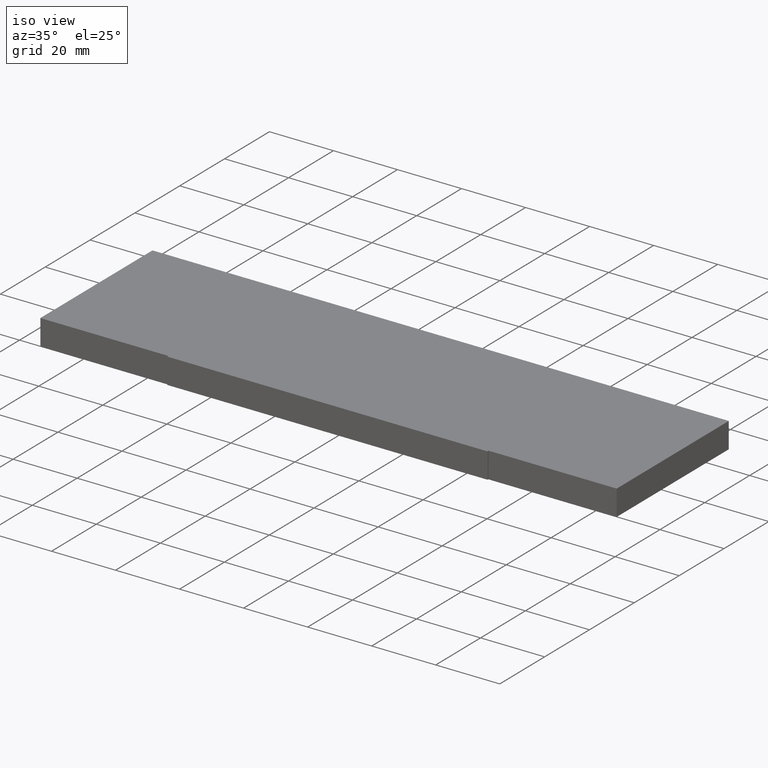
[diagram: clean part render]
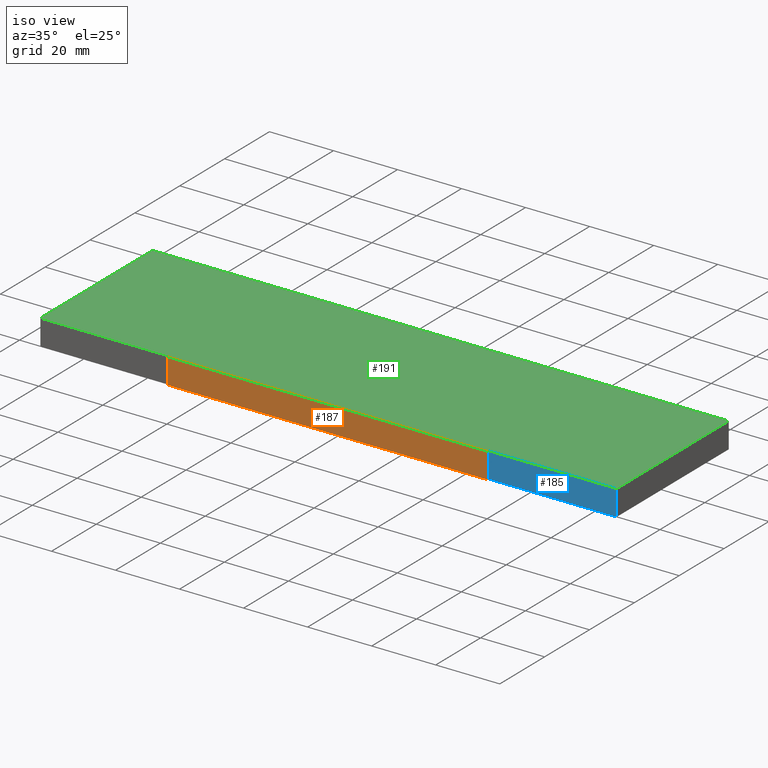
[diagram: same view with three faces highlighted in distinct colors, each labeled with its STEP entity id]
A machine part, iso view with three faces highlighted in distinct colors.
Their STEP definitions:

[orange] entity #187 — the highlighted planar face has unit normal (0, -1, 0).
#21=FACE_OUTER_BOUND('',#31,.T.);
#31=EDGE_LOOP('',(#148,#149,#150,#151));
#42=LINE('',#287,#66);
#52=LINE('',#306,#76);
#53=LINE('',#309,#77);
#54=LINE('',#310,#78);
#66=VECTOR('',#235,10.);
#76=VECTOR('',#253,10.);
#77=VECTOR('',#256,10.);
#78=VECTOR('',#257,10.);
#90=VERTEX_POINT('',#284);
#91=VERTEX_POINT('',#286);
#96=VERTEX_POINT('',#304);
#97=VERTEX_POINT('',#308);
#106=EDGE_CURVE('',#91,#90,#42,.T.);
#116=EDGE_CURVE('',#96,#90,#52,.T.);
#117=EDGE_CURVE('',#96,#97,#53,.T.);
#118=EDGE_CURVE('',#97,#91,#54,.T.);
#148=ORIENTED_EDGE('',*,*,#117,.T.);
#149=ORIENTED_EDGE('',*,*,#118,.T.);
#150=ORIENTED_EDGE('',*,*,#106,.T.);
#151=ORIENTED_EDGE('',*,*,#116,.F.);
#177=PLANE('',#220);
#187=ADVANCED_FACE('',(#21),#177,.T.);
#220=AXIS2_PLACEMENT_3D('',#307,#254,#255);
#235=DIRECTION('',(1.,0.,0.));
#253=DIRECTION('',(0.,0.,-1.));
#254=DIRECTION('center_axis',(0.,-1.,0.));
#255=DIRECTION('ref_axis',(0.,0.,-1.));
#256=DIRECTION('',(-1.,0.,0.));
#257=DIRECTION('',(0.,0.,-1.));
#284=CARTESIAN_POINT('',(50.,-25.5,-4.));
#286=CARTESIAN_POINT('',(-50.,-25.5,-4.));
#287=CARTESIAN_POINT('',(50.,-25.5,-4.));
#304=CARTESIAN_POINT('',(50.,-25.5,4.));
#306=CARTESIAN_POINT('',(50.,-25.5,0.));
#307=CARTESIAN_POINT('Origin',(50.,-25.5,0.));
#308=CARTESIAN_POINT('',(-50.,-25.5,4.));
#309=CARTESIAN_POINT('',(50.,-25.5,4.));
#310=CARTESIAN_POINT('',(-50.,-25.5,0.));

[blue] entity #185 — the highlighted planar face has unit normal (0, -1, 0).
#19=FACE_OUTER_BOUND('',#29,.T.);
#29=EDGE_LOOP('',(#140,#141,#142,#143));
#40=LINE('',#283,#64);
#48=LINE('',#298,#72);
#49=LINE('',#301,#73);
#50=LINE('',#302,#74);
#64=VECTOR('',#233,10.);
#72=VECTOR('',#245,10.);
#73=VECTOR('',#248,10.);
#74=VECTOR('',#249,10.);
#88=VERTEX_POINT('',#280);
#89=VERTEX_POINT('',#282);
#94=VERTEX_POINT('',#296);
#95=VERTEX_POINT('',#300);
#104=EDGE_CURVE('',#89,#88,#40,.T.);
#112=EDGE_CURVE('',#94,#88,#48,.T.);
#113=EDGE_CURVE('',#94,#95,#49,.T.);
#114=EDGE_CURVE('',#95,#89,#50,.T.);
#140=ORIENTED_EDGE('',*,*,#113,.T.);
#141=ORIENTED_EDGE('',*,*,#114,.T.);
#142=ORIENTED_EDGE('',*,*,#104,.T.);
#143=ORIENTED_EDGE('',*,*,#112,.F.);
#175=PLANE('',#218);
#185=ADVANCED_FACE('',(#19),#175,.T.);
#218=AXIS2_PLACEMENT_3D('',#299,#246,#247);
#233=DIRECTION('',(1.,1.11022302462516E-16,0.));
#245=DIRECTION('',(0.,0.,-1.));
#246=DIRECTION('center_axis',(1.11022302462516E-16,-1.,0.));
#247=DIRECTION('ref_axis',(0.,0.,-1.));
#248=DIRECTION('',(-1.,-1.11022302462516E-16,0.));
#249=DIRECTION('',(0.,0.,-1.));
#280=CARTESIAN_POINT('',(90.,-25.,-4.));
#282=CARTESIAN_POINT('',(50.,-25.,-4.));
#283=CARTESIAN_POINT('',(90.,-25.,-4.));
#296=CARTESIAN_POINT('',(90.,-25.,4.));
#298=CARTESIAN_POINT('',(90.,-25.,0.));
#299=CARTESIAN_POINT('Origin',(90.,-25.,0.));
#300=CARTESIAN_POINT('',(50.,-25.,4.));
#301=CARTESIAN_POINT('',(90.,-25.,4.));
#302=CARTESIAN_POINT('',(50.,-25.,0.));

[green] entity #191 — the highlighted planar face has unit normal (0, 0, 1).
#25=FACE_OUTER_BOUND('',#35,.T.);
#35=EDGE_LOOP('',(#164,#165,#166,#167,#168,#169,#170,#171));
#44=LINE('',#292,#68);
#47=LINE('',#297,#71);
#49=LINE('',#301,#73);
#51=LINE('',#305,#75);
#53=LINE('',#309,#77);
#55=LINE('',#313,#79);
#57=LINE('',#317,#81);
#59=LINE('',#320,#83);
#68=VECTOR('',#239,10.);
#71=VECTOR('',#244,10.);
#73=VECTOR('',#248,10.);
#75=VECTOR('',#252,10.);
#77=VECTOR('',#256,10.);
#79=VECTOR('',#260,10.);
#81=VECTOR('',#264,10.);
#83=VECTOR('',#268,10.);
#92=VERTEX_POINT('',#290);
#93=VERTEX_POINT('',#291);
#94=VERTEX_POINT('',#296);
#95=VERTEX_POINT('',#300);
#96=VERTEX_POINT('',#304);
#97=VERTEX_POINT('',#308);
#98=VERTEX_POINT('',#312);
#99=VERTEX_POINT('',#316);
#108=EDGE_CURVE('',#92,#93,#44,.T.);
#111=EDGE_CURVE('',#93,#94,#47,.T.);
#113=EDGE_CURVE('',#94,#95,#49,.T.);
#115=EDGE_CURVE('',#95,#96,#51,.T.);
#117=EDGE_CURVE('',#96,#97,#53,.T.);
#119=EDGE_CURVE('',#97,#98,#55,.T.);
#121=EDGE_CURVE('',#98,#99,#57,.T.);
#123=EDGE_CURVE('',#99,#92,#59,.T.);
#164=ORIENTED_EDGE('',*,*,#108,.F.);
#165=ORIENTED_EDGE('',*,*,#123,.F.);
#166=ORIENTED_EDGE('',*,*,#121,.F.);
#167=ORIENTED_EDGE('',*,*,#119,.F.);
#168=ORIENTED_EDGE('',*,*,#117,.F.);
#169=ORIENTED_EDGE('',*,*,#115,.F.);
#170=ORIENTED_EDGE('',*,*,#113,.F.);
#171=ORIENTED_EDGE('',*,*,#111,.F.);
#181=PLANE('',#224);
#191=ADVANCED_FACE('',(#25),#181,.T.);
#224=AXIS2_PLACEMENT_3D('',#321,#269,#270);
#239=DIRECTION('',(1.,1.97372982155583E-16,0.));
#244=DIRECTION('',(0.,-1.,0.));
#248=DIRECTION('',(-1.,-1.11022302462516E-16,0.));
#252=DIRECTION('',(0.,-1.,0.));
#256=DIRECTION('',(-1.,0.,0.));
#260=DIRECTION('',(0.,1.,0.));
#264=DIRECTION('',(-1.,1.11022302462516E-16,0.));
#268=DIRECTION('',(0.,1.,0.));
#269=DIRECTION('center_axis',(0.,0.,1.));
#270=DIRECTION('ref_axis',(1.,0.,0.));
#290=CARTESIAN_POINT('',(-90.,25.,4.));
#291=CARTESIAN_POINT('',(90.,25.,4.));
#292=CARTESIAN_POINT('',(-90.,25.,4.));
#296=CARTESIAN_POINT('',(90.,-25.,4.));
#297=CARTESIAN_POINT('',(90.,25.,4.));
#300=CARTESIAN_POINT('',(50.,-25.,4.));
#301=CARTESIAN_POINT('',(90.,-25.,4.));
#304=CARTESIAN_POINT('',(50.,-25.5,4.));
#305=CARTESIAN_POINT('',(50.,-25.,4.));
#308=CARTESIAN_POINT('',(-50.,-25.5,4.));
#309=CARTESIAN_POINT('',(50.,-25.5,4.));
#312=CARTESIAN_POINT('',(-50.,-25.,4.));
#313=CARTESIAN_POINT('',(-50.,-25.5,4.));
#316=CARTESIAN_POINT('',(-90.,-25.,4.));
#317=CARTESIAN_POINT('',(-50.,-25.,4.));
#320=CARTESIAN_POINT('',(-90.,-25.,4.));
#321=CARTESIAN_POINT('Origin',(6.51049143823275E-15,-0.163232104121475,
4.));